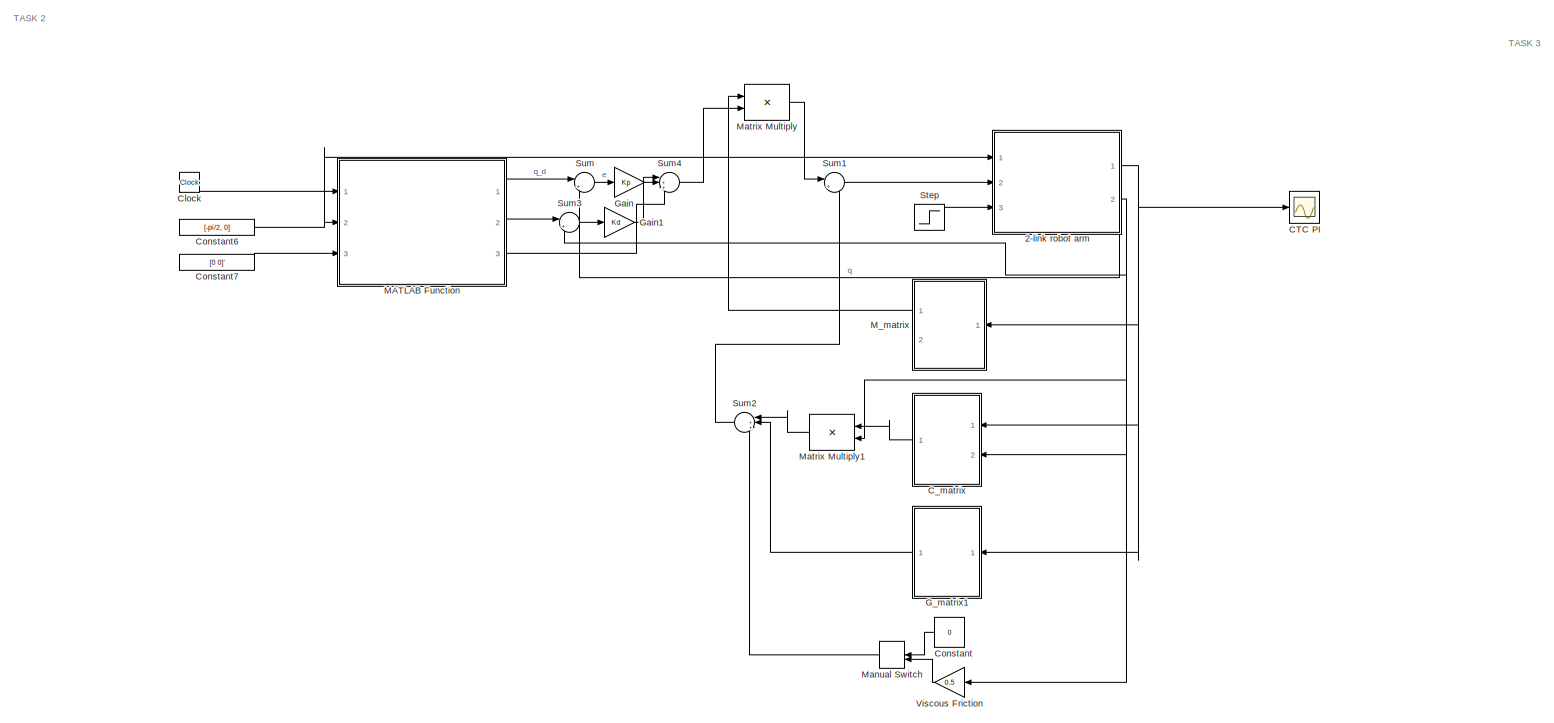
[diagram: root canvas - part 1/3, left side, full height]
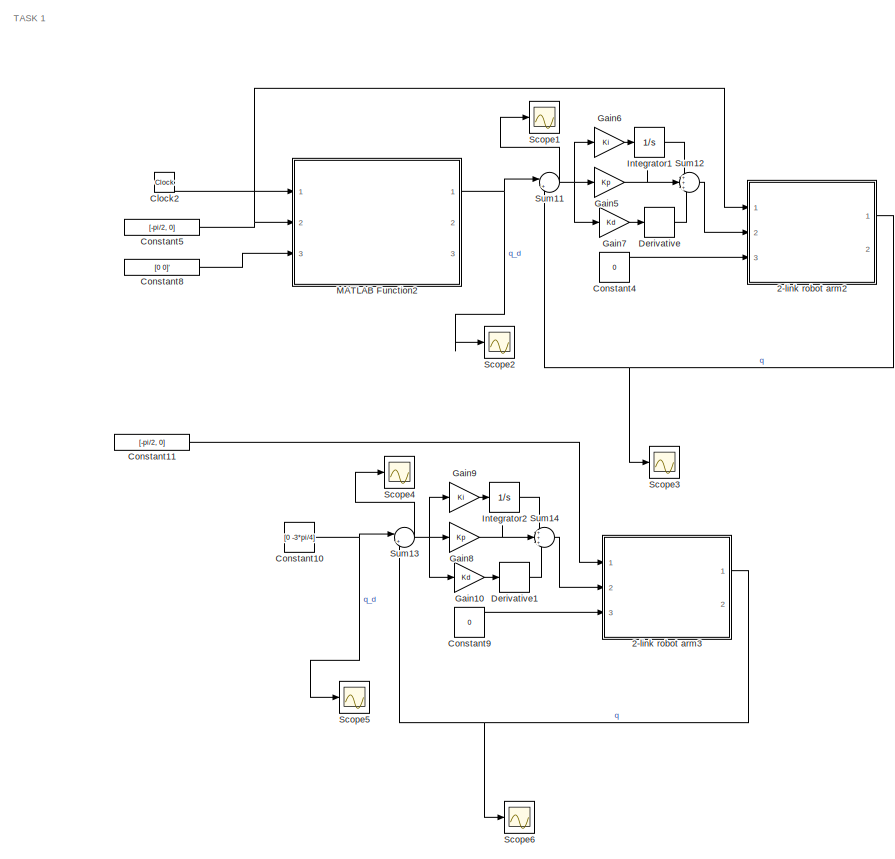
[diagram: root canvas - part 2/3, right side, full height]
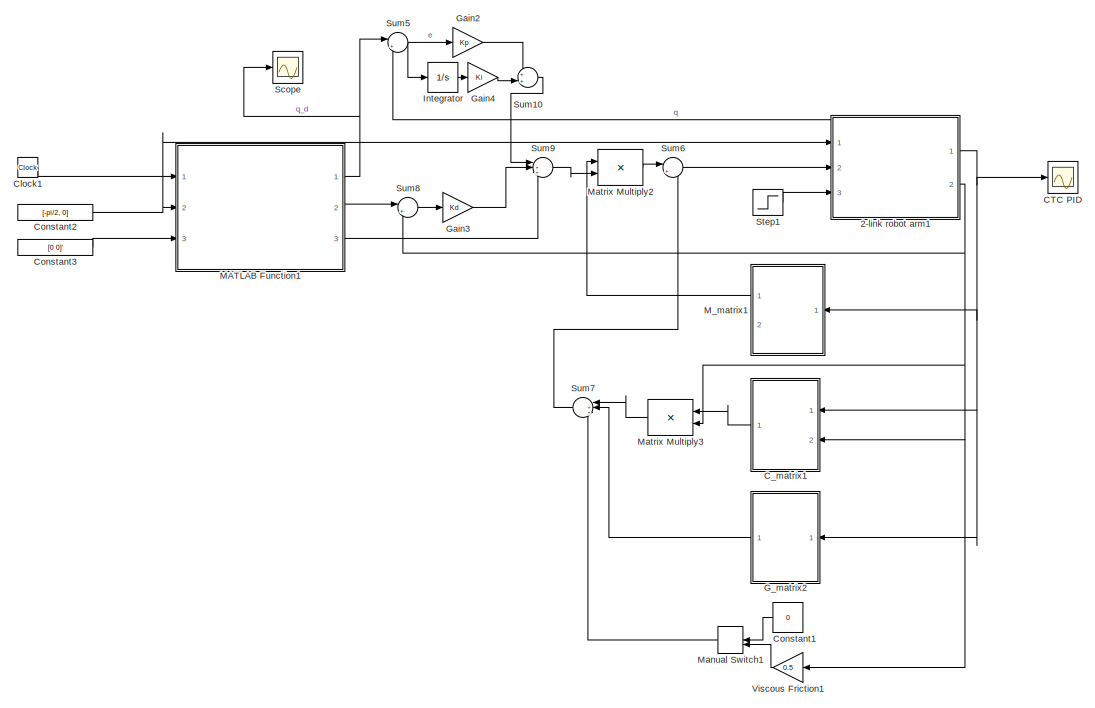
[diagram: root canvas - part 3/3, center side, full height]
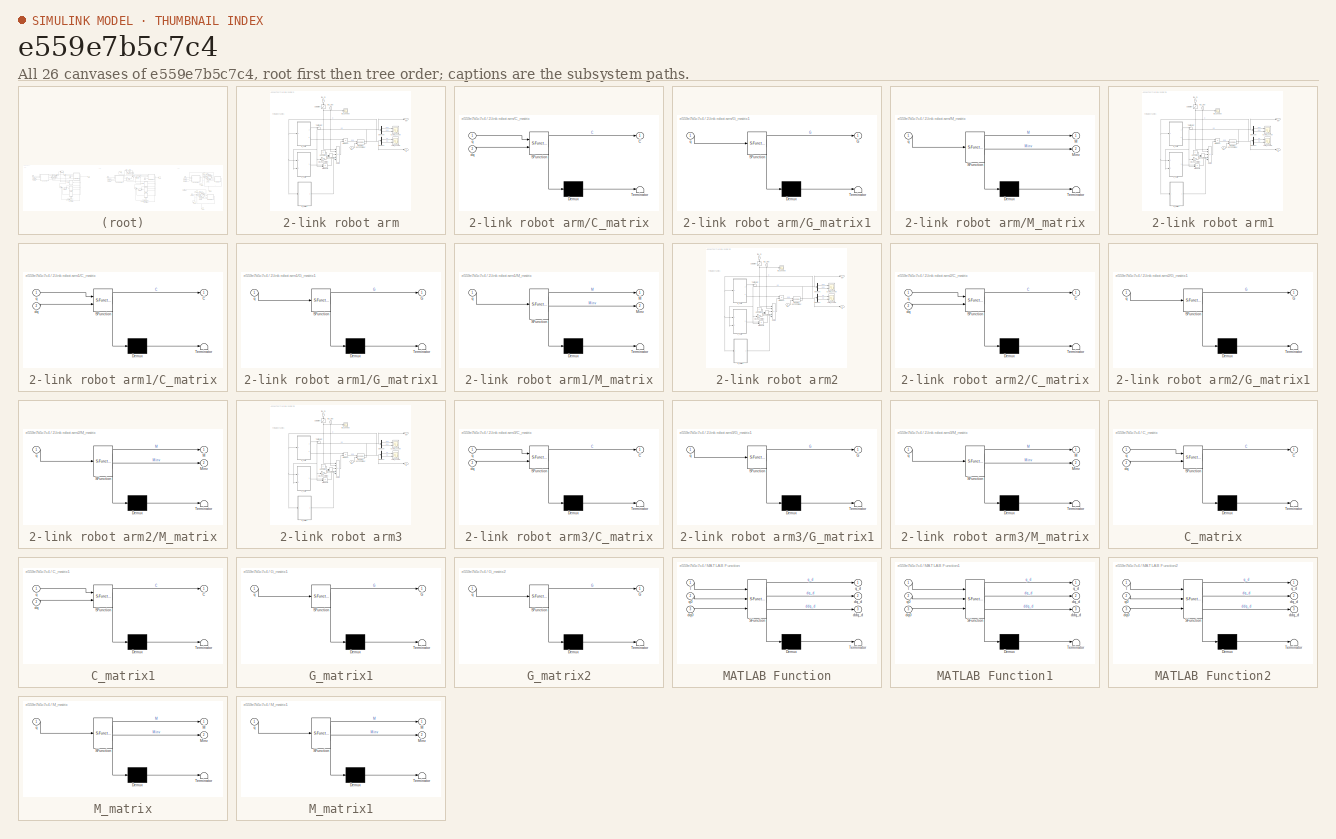
[diagram: thumbnail index - all 26 canvases of the model, root first then tree order]
MODEL slx_e559e7b5c7c4
KIND model
CONFIG AbsTol = auto
CONFIG EnableMultiTasking = off
CONFIG FixedStep = 1e-3
CONFIG MaxStep = auto
CONFIG MinStep = auto
CONFIG RelTol = 1e-3
CONFIG SampleTimeConstraint = Unconstrained
CONFIG Solver = ode4
CONFIG SolverName = ode4
CONFIG StartTime = 0.0
CONFIG StopTime = 100.0
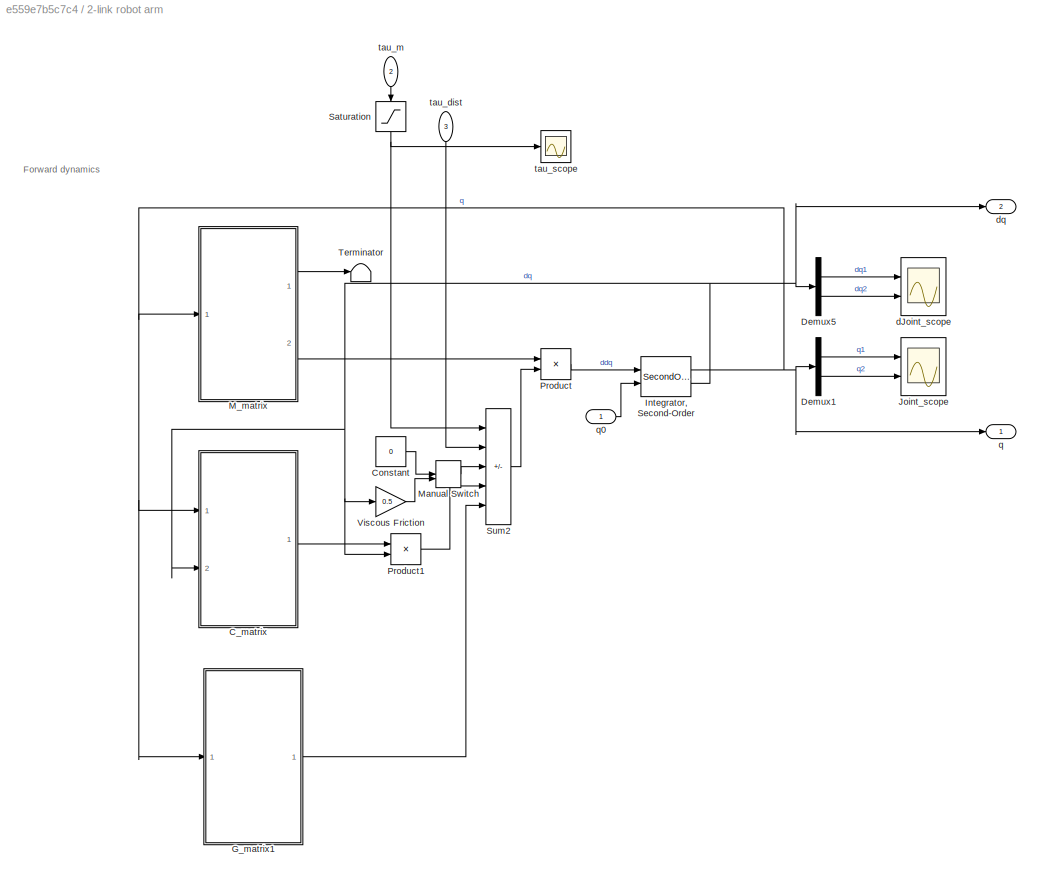
BLOCK [SubSystem] 2-link robot arm
  Ports = [3, 2]
  RequestExecContextInheritance = off
BLOCK [SubSystem] 2-link robot arm/C_matrix
  ErrorFcn = Stateflow.Translate.translate
  PermitHierarchicalResolution = ExplicitOnly
  Ports = [2, 1]
  RequestExecContextInheritance = off
  SFBlockType = MATLAB Function
  TreatAsAtomicUnit = on
BLOCK [Demux] 2-link robot arm/C_matrix/ Demux 
  Outputs = 1
  Ports = [1, 1]
BLOCK [S-Function] 2-link robot arm/C_matrix/ SFunction 
  EnableBusSupport = on
  FunctionName = sf_sfun
  Parameters = l1,lc2,m2
  PortCounts = [2 2]
  Ports = [2, 2]
  SFcnIsStateOwnerBlock = off
  SFunctionDeploymentMode = off
  Tag = Stateflow S-Function 23
BLOCK [Terminator] 2-link robot arm/C_matrix/ Terminator 
BLOCK [Outport] 2-link robot arm/C_matrix/C
  VectorParamsAs1DForOutWhenUnconnected = off
BLOCK [Inport] 2-link robot arm/C_matrix/dq
  Port = 2
BLOCK [Inport] 2-link robot arm/C_matrix/q
BLOCK [Constant] 2-link robot arm/Constant
  Value = 0
BLOCK [Demux] 2-link robot arm/Demux1
  Outputs = 2
  Ports = [1, 2]
BLOCK [Demux] 2-link robot arm/Demux5
  Outputs = 2
  Ports = [1, 2]
BLOCK [SubSystem] 2-link robot arm/G_matrix1
  ErrorFcn = Stateflow.Translate.translate
  PermitHierarchicalResolution = ExplicitOnly
  Ports = [1, 1]
  RequestExecContextInheritance = off
  SFBlockType = MATLAB Function
  TreatAsAtomicUnit = on
BLOCK [Demux] 2-link robot arm/G_matrix1/ Demux 
  Outputs = 1
  Ports = [1, 1]
BLOCK [S-Function] 2-link robot arm/G_matrix1/ SFunction 
  EnableBusSupport = on
  FunctionName = sf_sfun
  Parameters = g,l1,lc1,lc2,m1,m2
  PortCounts = [1 2]
  Ports = [1, 2]
  SFcnIsStateOwnerBlock = off
  SFunctionDeploymentMode = off
  Tag = Stateflow S-Function 24
BLOCK [Terminator] 2-link robot arm/G_matrix1/ Terminator 
BLOCK [Outport] 2-link robot arm/G_matrix1/G
  VectorParamsAs1DForOutWhenUnconnected = off
BLOCK [Inport] 2-link robot arm/G_matrix1/q
BLOCK [SecondOrderIntegrator] 2-link robot arm/Integrator, Second-Order
  ICSourceX = external
  Ports = [2, 2]
BLOCK [Scope] 2-link robot arm/Joint_scope
  Floating = off
  NumInputPorts = 2
  Ports = [2]
  ScopeSpecificationString = Simulink.scopes.TimeScopeBlockCfg('CurrentConfiguration', extmgr.ConfigurationSet(extmgr.Configuration('Core','General UI',true,'FigureColor',[0 0 0]),extmgr.Configuration('Core','Source UI',true),extmgr.Configuration('Sources','WiredSimulink',true),extmgr.Configuration('Visuals','Time Domain',true,'SerializedDisplays',{struct('MinYLimReal','-10.12473','MaxYLimReal','10.26063','YLabelReal','q_i(t)...<+1816ch>
BLOCK [SubSystem] 2-link robot arm/M_matrix
  ErrorFcn = Stateflow.Translate.translate
  PermitHierarchicalResolution = ExplicitOnly
  Ports = [1, 2]
  RequestExecContextInheritance = off
  SFBlockType = MATLAB Function
  TreatAsAtomicUnit = on
BLOCK [Demux] 2-link robot arm/M_matrix/ Demux 
  Outputs = 1
  Ports = [1, 1]
BLOCK [S-Function] 2-link robot arm/M_matrix/ SFunction 
  EnableBusSupport = on
  FunctionName = sf_sfun
  Parameters = I1zz,I2zz,l1,lc1,lc2,m1,m2
  PortCounts = [1 3]
  Ports = [1, 3]
  SFcnIsStateOwnerBlock = off
  SFunctionDeploymentMode = off
  Tag = Stateflow S-Function 25
BLOCK [Terminator] 2-link robot arm/M_matrix/ Terminator 
BLOCK [Outport] 2-link robot arm/M_matrix/M
  VectorParamsAs1DForOutWhenUnconnected = off
BLOCK [Outport] 2-link robot arm/M_matrix/Minv
  Port = 2
  VectorParamsAs1DForOutWhenUnconnected = off
BLOCK [Inport] 2-link robot arm/M_matrix/q
BLOCK [ManualSwitch] 2-link robot arm/Manual Switch
BLOCK [Product] 2-link robot arm/Product
  Multiplication = Matrix(*)
  Ports = [2, 1]
BLOCK [Product] 2-link robot arm/Product1
  Multiplication = Matrix(*)
  Ports = [2, 1]
BLOCK [Saturate] 2-link robot arm/Saturation
  LowerLimit = tau_down
  NameLocation = left
  UpperLimit = tau_up
BLOCK [Sum] 2-link robot arm/Sum2
  IconShape = rectangular
  Inputs = ++|---
  Ports = [5, 1]
BLOCK [Terminator] 2-link robot arm/Terminator
BLOCK [Gain] 2-link robot arm/Viscous Friction
  Gain = 0.5
BLOCK [Scope] 2-link robot arm/dJoint_scope
  Floating = off
  NumInputPorts = 2
  Ports = [2]
  ScopeSpecificationString = Simulink.scopes.TimeScopeBlockCfg('CurrentConfiguration', extmgr.ConfigurationSet(extmgr.Configuration('Core','General UI',true,'FigureColor',[0 0 0]),extmgr.Configuration('Core','Source UI',true),extmgr.Configuration('Sources','WiredSimulink',true,'DataLoggingVariableName','ScopeData1'),extmgr.Configuration('Visuals','Time Domain',true,'SerializedDisplays',{struct('MinYLimReal','-23.61564','MaxYL...<+1852ch>  <repeated x4 — deduplicated; at blocks: dJoint_scope>
BLOCK [Outport] 2-link robot arm/dq 
  Port = 2
BLOCK [Outport] 2-link robot arm/q 
BLOCK [Inport] 2-link robot arm/q0
BLOCK [Inport] 2-link robot arm/tau_dist
  NameLocation = left
  Port = 3
BLOCK [Inport] 2-link robot arm/tau_m
  NameLocation = left
  Port = 2
BLOCK [Scope] 2-link robot arm/tau_scope
  Floating = off
  NumInputPorts = 1
  Ports = [1]
  ScopeSpecificationString = Simulink.scopes.TimeScopeBlockCfg('CurrentConfiguration', extmgr.ConfigurationSet(extmgr.Configuration('Core','General UI',true),extmgr.Configuration('Core','Source UI',true),extmgr.Configuration('Sources','WiredSimulink',true,'DataLoggingVariableName','ScopeData3'),extmgr.Configuration('Visuals','Time Domain',true,'SerializedDisplays',{struct('MinYLimReal','-245.27394','MaxYLimReal','207.46548','...<+1463ch>
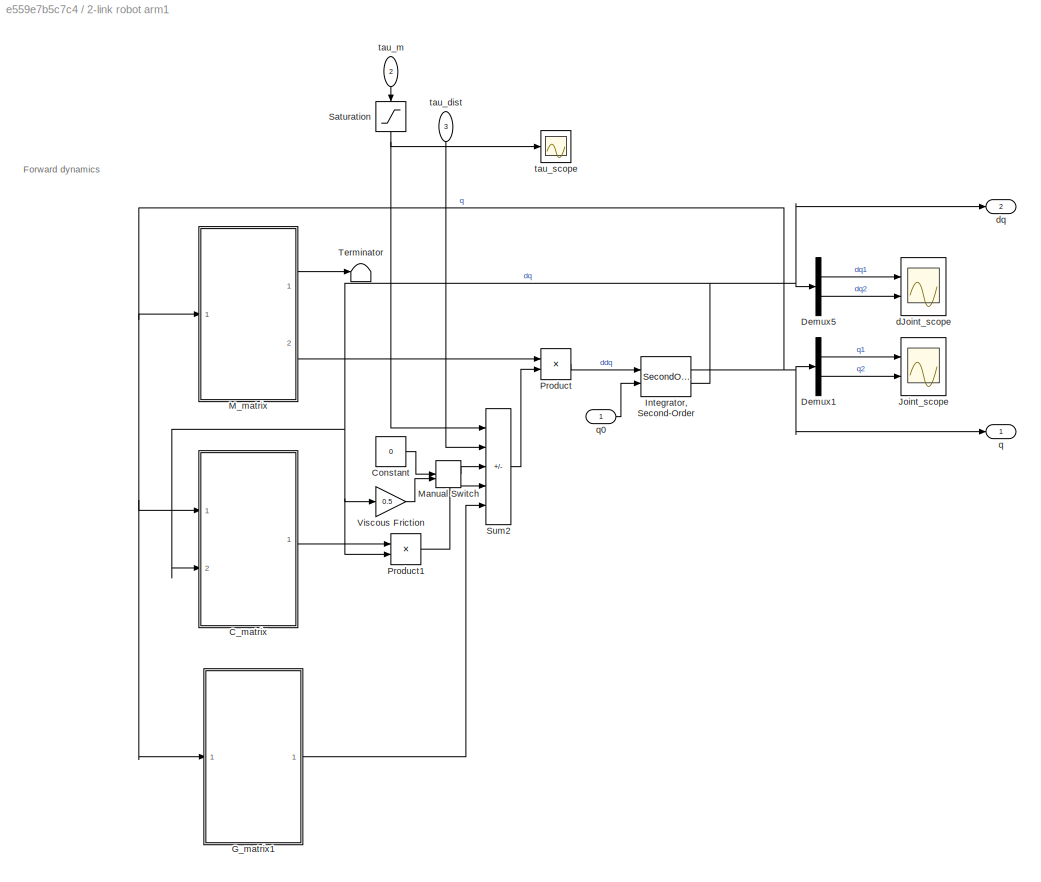
BLOCK [SubSystem] 2-link robot arm1
  Ports = [3, 2]
  RequestExecContextInheritance = off
BLOCK [SubSystem] 2-link robot arm1/C_matrix
  ErrorFcn = Stateflow.Translate.translate
  PermitHierarchicalResolution = ExplicitOnly
  Ports = [2, 1]
  RequestExecContextInheritance = off
  SFBlockType = MATLAB Function
  TreatAsAtomicUnit = on
BLOCK [Demux] 2-link robot arm1/C_matrix/ Demux 
  Outputs = 1
  Ports = [1, 1]
BLOCK [S-Function] 2-link robot arm1/C_matrix/ SFunction 
  EnableBusSupport = on
  FunctionName = sf_sfun
  Parameters = l1,lc2,m2
  PortCounts = [2 2]
  Ports = [2, 2]
  SFcnIsStateOwnerBlock = off
  SFunctionDeploymentMode = off
  Tag = Stateflow S-Function 4
BLOCK [Terminator] 2-link robot arm1/C_matrix/ Terminator 
BLOCK [Outport] 2-link robot arm1/C_matrix/C
  VectorParamsAs1DForOutWhenUnconnected = off
BLOCK [Inport] 2-link robot arm1/C_matrix/dq
  Port = 2
BLOCK [Inport] 2-link robot arm1/C_matrix/q
BLOCK [Constant] 2-link robot arm1/Constant
  Value = 0
BLOCK [Demux] 2-link robot arm1/Demux1
  Outputs = 2
  Ports = [1, 2]
BLOCK [Demux] 2-link robot arm1/Demux5
  Outputs = 2
  Ports = [1, 2]
BLOCK [SubSystem] 2-link robot arm1/G_matrix1
  ErrorFcn = Stateflow.Translate.translate
  PermitHierarchicalResolution = ExplicitOnly
  Ports = [1, 1]
  RequestExecContextInheritance = off
  SFBlockType = MATLAB Function
  TreatAsAtomicUnit = on
BLOCK [Demux] 2-link robot arm1/G_matrix1/ Demux 
  Outputs = 1
  Ports = [1, 1]
BLOCK [S-Function] 2-link robot arm1/G_matrix1/ SFunction 
  EnableBusSupport = on
  FunctionName = sf_sfun
  Parameters = g,l1,lc1,lc2,m1,m2
  PortCounts = [1 2]
  Ports = [1, 2]
  SFcnIsStateOwnerBlock = off
  SFunctionDeploymentMode = off
  Tag = Stateflow S-Function 5
BLOCK [Terminator] 2-link robot arm1/G_matrix1/ Terminator 
BLOCK [Outport] 2-link robot arm1/G_matrix1/G
  VectorParamsAs1DForOutWhenUnconnected = off
BLOCK [Inport] 2-link robot arm1/G_matrix1/q
BLOCK [SecondOrderIntegrator] 2-link robot arm1/Integrator, Second-Order
  ICSourceX = external
  Ports = [2, 2]
BLOCK [Scope] 2-link robot arm1/Joint_scope
  Floating = off
  NumInputPorts = 2
  Ports = [2]
  ScopeSpecificationString = Simulink.scopes.TimeScopeBlockCfg('CurrentConfiguration', extmgr.ConfigurationSet(extmgr.Configuration('Core','General UI',true,'FigureColor',[0 0 0]),extmgr.Configuration('Core','Source UI',true),extmgr.Configuration('Sources','WiredSimulink',true),extmgr.Configuration('Visuals','Time Domain',true,'SerializedDisplays',{struct('MinYLimReal','-5','MaxYLimReal','5','YLabelReal','q_i(t)','MinYLimMag'...<+1788ch>
BLOCK [SubSystem] 2-link robot arm1/M_matrix
  ErrorFcn = Stateflow.Translate.translate
  PermitHierarchicalResolution = ExplicitOnly
  Ports = [1, 2]
  RequestExecContextInheritance = off
  SFBlockType = MATLAB Function
  TreatAsAtomicUnit = on
BLOCK [Demux] 2-link robot arm1/M_matrix/ Demux 
  Outputs = 1
  Ports = [1, 1]
BLOCK [S-Function] 2-link robot arm1/M_matrix/ SFunction 
  EnableBusSupport = on
  FunctionName = sf_sfun
  Parameters = I1zz,I2zz,l1,lc1,lc2,m1,m2
  PortCounts = [1 3]
  Ports = [1, 3]
  SFcnIsStateOwnerBlock = off
  SFunctionDeploymentMode = off
  Tag = Stateflow S-Function 6
BLOCK [Terminator] 2-link robot arm1/M_matrix/ Terminator 
BLOCK [Outport] 2-link robot arm1/M_matrix/M
  VectorParamsAs1DForOutWhenUnconnected = off
BLOCK [Outport] 2-link robot arm1/M_matrix/Minv
  Port = 2
  VectorParamsAs1DForOutWhenUnconnected = off
BLOCK [Inport] 2-link robot arm1/M_matrix/q
BLOCK [ManualSwitch] 2-link robot arm1/Manual Switch
BLOCK [Product] 2-link robot arm1/Product
  Multiplication = Matrix(*)
  Ports = [2, 1]
BLOCK [Product] 2-link robot arm1/Product1
  Multiplication = Matrix(*)
  Ports = [2, 1]
BLOCK [Saturate] 2-link robot arm1/Saturation
  LowerLimit = tau_down
  NameLocation = left
  UpperLimit = tau_up
BLOCK [Sum] 2-link robot arm1/Sum2
  IconShape = rectangular
  Inputs = ++|---
  Ports = [5, 1]
BLOCK [Terminator] 2-link robot arm1/Terminator
BLOCK [Gain] 2-link robot arm1/Viscous Friction
  Gain = 0.5
BLOCK [Scope] 2-link robot arm1/dJoint_scope
  Floating = off
  NumInputPorts = 2
  Ports = [2]
BLOCK [Outport] 2-link robot arm1/dq 
  Port = 2
BLOCK [Outport] 2-link robot arm1/q 
BLOCK [Inport] 2-link robot arm1/q0
BLOCK [Inport] 2-link robot arm1/tau_dist
  NameLocation = left
  Port = 3
BLOCK [Inport] 2-link robot arm1/tau_m
  NameLocation = left
  Port = 2
BLOCK [Scope] 2-link robot arm1/tau_scope
  Floating = off
  NumInputPorts = 1
  Ports = [1]
  ScopeSpecificationString = Simulink.scopes.TimeScopeBlockCfg('CurrentConfiguration', extmgr.ConfigurationSet(extmgr.Configuration('Core','General UI',true),extmgr.Configuration('Core','Source UI',true),extmgr.Configuration('Sources','WiredSimulink',true,'DataLoggingVariableName','ScopeData3'),extmgr.Configuration('Visuals','Time Domain',true,'SerializedDisplays',{struct('MinYLimReal','-245.24901','MaxYLimReal','207.24109','...<+1462ch>
BLOCK [SubSystem] 2-link robot arm2
  Ports = [3, 2]
  RequestExecContextInheritance = off
BLOCK [SubSystem] 2-link robot arm2/C_matrix
  ErrorFcn = Stateflow.Translate.translate
  PermitHierarchicalResolution = ExplicitOnly
  Ports = [2, 1]
  RequestExecContextInheritance = off
  SFBlockType = MATLAB Function
  TreatAsAtomicUnit = on
BLOCK [Demux] 2-link robot arm2/C_matrix/ Demux 
  Outputs = 1
  Ports = [1, 1]
BLOCK [S-Function] 2-link robot arm2/C_matrix/ SFunction 
  EnableBusSupport = on
  FunctionName = sf_sfun
  Parameters = l1,lc2,m2
  PortCounts = [2 2]
  Ports = [2, 2]
  SFcnIsStateOwnerBlock = off
  SFunctionDeploymentMode = off
  Tag = Stateflow S-Function 12
BLOCK [Terminator] 2-link robot arm2/C_matrix/ Terminator 
BLOCK [Outport] 2-link robot arm2/C_matrix/C
  VectorParamsAs1DForOutWhenUnconnected = off
BLOCK [Inport] 2-link robot arm2/C_matrix/dq
  Port = 2
BLOCK [Inport] 2-link robot arm2/C_matrix/q
BLOCK [Constant] 2-link robot arm2/Constant
  Value = 0
BLOCK [Demux] 2-link robot arm2/Demux1
  Outputs = 2
  Ports = [1, 2]
BLOCK [Demux] 2-link robot arm2/Demux5
  Outputs = 2
  Ports = [1, 2]
BLOCK [SubSystem] 2-link robot arm2/G_matrix1
  ErrorFcn = Stateflow.Translate.translate
  PermitHierarchicalResolution = ExplicitOnly
  Ports = [1, 1]
  RequestExecContextInheritance = off
  SFBlockType = MATLAB Function
  TreatAsAtomicUnit = on
BLOCK [Demux] 2-link robot arm2/G_matrix1/ Demux 
  Outputs = 1
  Ports = [1, 1]
BLOCK [S-Function] 2-link robot arm2/G_matrix1/ SFunction 
  EnableBusSupport = on
  FunctionName = sf_sfun
  Parameters = g,l1,lc1,lc2,m1,m2
  PortCounts = [1 2]
  Ports = [1, 2]
  SFcnIsStateOwnerBlock = off
  SFunctionDeploymentMode = off
  Tag = Stateflow S-Function 13
BLOCK [Terminator] 2-link robot arm2/G_matrix1/ Terminator 
BLOCK [Outport] 2-link robot arm2/G_matrix1/G
  VectorParamsAs1DForOutWhenUnconnected = off
BLOCK [Inport] 2-link robot arm2/G_matrix1/q
BLOCK [SecondOrderIntegrator] 2-link robot arm2/Integrator, Second-Order
  ICSourceX = external
  Ports = [2, 2]
BLOCK [Scope] 2-link robot arm2/Joint_scope
  Floating = off
  NumInputPorts = 2
  Ports = [2]
  ScopeSpecificationString = Simulink.scopes.TimeScopeBlockCfg('CurrentConfiguration', extmgr.ConfigurationSet(extmgr.Configuration('Core','General UI',true,'FigureColor',[0 0 0]),extmgr.Configuration('Core','Source UI',true),extmgr.Configuration('Sources','WiredSimulink',true),extmgr.Configuration('Visuals','Time Domain',true,'SerializedDisplays',{struct('MinYLimReal','-5','MaxYLimReal','5','YLabelReal','q_i(t)','MinYLimMag'...<+1788ch>
BLOCK [SubSystem] 2-link robot arm2/M_matrix
  ErrorFcn = Stateflow.Translate.translate
  PermitHierarchicalResolution = ExplicitOnly
  Ports = [1, 2]
  RequestExecContextInheritance = off
  SFBlockType = MATLAB Function
  TreatAsAtomicUnit = on
BLOCK [Demux] 2-link robot arm2/M_matrix/ Demux 
  Outputs = 1
  Ports = [1, 1]
BLOCK [S-Function] 2-link robot arm2/M_matrix/ SFunction 
  EnableBusSupport = on
  FunctionName = sf_sfun
  Parameters = I1zz,I2zz,l1,lc1,lc2,m1,m2
  PortCounts = [1 3]
  Ports = [1, 3]
  SFcnIsStateOwnerBlock = off
  SFunctionDeploymentMode = off
  Tag = Stateflow S-Function 14
BLOCK [Terminator] 2-link robot arm2/M_matrix/ Terminator 
BLOCK [Outport] 2-link robot arm2/M_matrix/M
  VectorParamsAs1DForOutWhenUnconnected = off
BLOCK [Outport] 2-link robot arm2/M_matrix/Minv
  Port = 2
  VectorParamsAs1DForOutWhenUnconnected = off
BLOCK [Inport] 2-link robot arm2/M_matrix/q
BLOCK [ManualSwitch] 2-link robot arm2/Manual Switch
BLOCK [Product] 2-link robot arm2/Product
  Multiplication = Matrix(*)
  Ports = [2, 1]
BLOCK [Product] 2-link robot arm2/Product1
  Multiplication = Matrix(*)
  Ports = [2, 1]
BLOCK [Saturate] 2-link robot arm2/Saturation
  LowerLimit = tau_down
  NameLocation = left
  UpperLimit = tau_up
BLOCK [Sum] 2-link robot arm2/Sum2
  IconShape = rectangular
  Inputs = ++|---
  Ports = [5, 1]
BLOCK [Terminator] 2-link robot arm2/Terminator
BLOCK [Gain] 2-link robot arm2/Viscous Friction
  Gain = 0.5
BLOCK [Scope] 2-link robot arm2/dJoint_scope
  Floating = off
  NumInputPorts = 2
  Ports = [2]
BLOCK [Outport] 2-link robot arm2/dq 
  Port = 2
BLOCK [Outport] 2-link robot arm2/q 
BLOCK [Inport] 2-link robot arm2/q0
BLOCK [Inport] 2-link robot arm2/tau_dist
  NameLocation = left
  Port = 3
BLOCK [Inport] 2-link robot arm2/tau_m
  NameLocation = left
  Port = 2
BLOCK [Scope] 2-link robot arm2/tau_scope
  Floating = off
  NumInputPorts = 1
  Ports = [1]
  ScopeSpecificationString = Simulink.scopes.TimeScopeBlockCfg('CurrentConfiguration', extmgr.ConfigurationSet(extmgr.Configuration('Core','General UI',true),extmgr.Configuration('Core','Source UI',true),extmgr.Configuration('Sources','WiredSimulink',true,'DataLoggingVariableName','ScopeData3'),extmgr.Configuration('Visuals','Time Domain',true,'SerializedDisplays',{struct('MinYLimReal','-250.00000','MaxYLimReal','250.00000','...<+1461ch>
BLOCK [SubSystem] 2-link robot arm3
  Ports = [3, 2]
  RequestExecContextInheritance = off
BLOCK [SubSystem] 2-link robot arm3/C_matrix
  ErrorFcn = Stateflow.Translate.translate
  PermitHierarchicalResolution = ExplicitOnly
  Ports = [2, 1]
  RequestExecContextInheritance = off
  SFBlockType = MATLAB Function
  TreatAsAtomicUnit = on
BLOCK [Demux] 2-link robot arm3/C_matrix/ Demux 
  Outputs = 1
  Ports = [1, 1]
BLOCK [S-Function] 2-link robot arm3/C_matrix/ SFunction 
  EnableBusSupport = on
  FunctionName = sf_sfun
  Parameters = l1,lc2,m2
  PortCounts = [2 2]
  Ports = [2, 2]
  SFcnIsStateOwnerBlock = off
  SFunctionDeploymentMode = off
  Tag = Stateflow S-Function 15
BLOCK [Terminator] 2-link robot arm3/C_matrix/ Terminator 
BLOCK [Outport] 2-link robot arm3/C_matrix/C
  VectorParamsAs1DForOutWhenUnconnected = off
BLOCK [Inport] 2-link robot arm3/C_matrix/dq
  Port = 2
BLOCK [Inport] 2-link robot arm3/C_matrix/q
BLOCK [Constant] 2-link robot arm3/Constant
  Value = 0
BLOCK [Demux] 2-link robot arm3/Demux1
  Outputs = 2
  Ports = [1, 2]
BLOCK [Demux] 2-link robot arm3/Demux5
  Outputs = 2
  Ports = [1, 2]
BLOCK [SubSystem] 2-link robot arm3/G_matrix1
  ErrorFcn = Stateflow.Translate.translate
  PermitHierarchicalResolution = ExplicitOnly
  Ports = [1, 1]
  RequestExecContextInheritance = off
  SFBlockType = MATLAB Function
  TreatAsAtomicUnit = on
BLOCK [Demux] 2-link robot arm3/G_matrix1/ Demux 
  Outputs = 1
  Ports = [1, 1]
BLOCK [S-Function] 2-link robot arm3/G_matrix1/ SFunction 
  EnableBusSupport = on
  FunctionName = sf_sfun
  Parameters = g,l1,lc1,lc2,m1,m2
  PortCounts = [1 2]
  Ports = [1, 2]
  SFcnIsStateOwnerBlock = off
  SFunctionDeploymentMode = off
  Tag = Stateflow S-Function 16
BLOCK [Terminator] 2-link robot arm3/G_matrix1/ Terminator 
BLOCK [Outport] 2-link robot arm3/G_matrix1/G
  VectorParamsAs1DForOutWhenUnconnected = off
BLOCK [Inport] 2-link robot arm3/G_matrix1/q
BLOCK [SecondOrderIntegrator] 2-link robot arm3/Integrator, Second-Order
  ICSourceX = external
  Ports = [2, 2]
BLOCK [Scope] 2-link robot arm3/Joint_scope
  Floating = off
  NumInputPorts = 2
  Ports = [2]
  ScopeSpecificationString = Simulink.scopes.TimeScopeBlockCfg('CurrentConfiguration', extmgr.ConfigurationSet(extmgr.Configuration('Core','General UI',true,'FigureColor',[0 0 0]),extmgr.Configuration('Core','Source UI',true),extmgr.Configuration('Sources','WiredSimulink',true),extmgr.Configuration('Visuals','Time Domain',true,'SerializedDisplays',{struct('MinYLimReal','-3','MaxYLimReal','1','YLabelReal','q_i(t)','MinYLimMag'...<+1876ch>
BLOCK [SubSystem] 2-link robot arm3/M_matrix
  ErrorFcn = Stateflow.Translate.translate
  PermitHierarchicalResolution = ExplicitOnly
  Ports = [1, 2]
  RequestExecContextInheritance = off
  SFBlockType = MATLAB Function
  TreatAsAtomicUnit = on
BLOCK [Demux] 2-link robot arm3/M_matrix/ Demux 
  Outputs = 1
  Ports = [1, 1]
BLOCK [S-Function] 2-link robot arm3/M_matrix/ SFunction 
  EnableBusSupport = on
  FunctionName = sf_sfun
  Parameters = I1zz,I2zz,l1,lc1,lc2,m1,m2
  PortCounts = [1 3]
  Ports = [1, 3]
  SFcnIsStateOwnerBlock = off
  SFunctionDeploymentMode = off
  Tag = Stateflow S-Function 18
BLOCK [Terminator] 2-link robot arm3/M_matrix/ Terminator 
BLOCK [Outport] 2-link robot arm3/M_matrix/M
  VectorParamsAs1DForOutWhenUnconnected = off
BLOCK [Outport] 2-link robot arm3/M_matrix/Minv
  Port = 2
  VectorParamsAs1DForOutWhenUnconnected = off
BLOCK [Inport] 2-link robot arm3/M_matrix/q
BLOCK [ManualSwitch] 2-link robot arm3/Manual Switch
BLOCK [Product] 2-link robot arm3/Product
  Multiplication = Matrix(*)
  Ports = [2, 1]
BLOCK [Product] 2-link robot arm3/Product1
  Multiplication = Matrix(*)
  Ports = [2, 1]
BLOCK [Saturate] 2-link robot arm3/Saturation
  LowerLimit = tau_down
  NameLocation = left
  UpperLimit = tau_up
BLOCK [Sum] 2-link robot arm3/Sum2
  IconShape = rectangular
  Inputs = ++|---
  Ports = [5, 1]
BLOCK [Terminator] 2-link robot arm3/Terminator
BLOCK [Gain] 2-link robot arm3/Viscous Friction
  Gain = 0.5
BLOCK [Scope] 2-link robot arm3/dJoint_scope
  Floating = off
  NumInputPorts = 2
  Ports = [2]
BLOCK [Outport] 2-link robot arm3/dq 
  Port = 2
BLOCK [Outport] 2-link robot arm3/q 
BLOCK [Inport] 2-link robot arm3/q0
BLOCK [Inport] 2-link robot arm3/tau_dist
  NameLocation = left
  Port = 3
BLOCK [Inport] 2-link robot arm3/tau_m
  NameLocation = left
  Port = 2
BLOCK [Scope] 2-link robot arm3/tau_scope
  Floating = off
  NumInputPorts = 1
  Ports = [1]
  ScopeSpecificationString = Simulink.scopes.TimeScopeBlockCfg('CurrentConfiguration', extmgr.ConfigurationSet(extmgr.Configuration('Core','General UI',true),extmgr.Configuration('Core','Source UI',true),extmgr.Configuration('Sources','WiredSimulink',true,'DataLoggingVariableName','ScopeData3'),extmgr.Configuration('Visuals','Time Domain',true,'SerializedDisplays',{struct('MinYLimReal','-250.00000','MaxYLimReal','250.00000','...<+1461ch>
BLOCK [Scope] CTC PI
  Floating = off
  NumInputPorts = 1
  Ports = [1]
  ScopeSpecificationString = Simulink.scopes.TimeScopeBlockCfg('CurrentConfiguration', extmgr.ConfigurationSet(extmgr.Configuration('Core','General UI',true),extmgr.Configuration('Core','Source UI',true),extmgr.Configuration('Sources','WiredSimulink',true,'DataLoggingVariableName','ScopeData2'),extmgr.Configuration('Visuals','Time Domain',true,'SerializedDisplays',{struct('MinYLimReal','-1.97269','MaxYLimReal','0.6315','YLabe...<+1421ch>
BLOCK [Scope] CTC PID
  Floating = off
  NumInputPorts = 1
  Ports = [1]
  ScopeSpecificationString = Simulink.scopes.TimeScopeBlockCfg('CurrentConfiguration', extmgr.ConfigurationSet(extmgr.Configuration('Core','General UI',true),extmgr.Configuration('Core','Source UI',true),extmgr.Configuration('Sources','WiredSimulink',true,'DataLoggingVariableName','ScopeData1'),extmgr.Configuration('Visuals','Time Domain',true,'SerializedDisplays',{struct('MinYLimReal','-1.97437','MaxYLimReal','0.62938','YLab...<+1424ch>
BLOCK [SubSystem] C_matrix
  ErrorFcn = Stateflow.Translate.translate
  PermitHierarchicalResolution = ExplicitOnly
  Ports = [2, 1]
  RequestExecContextInheritance = off
  SFBlockType = MATLAB Function
  TreatAsAtomicUnit = on
BLOCK [Demux] C_matrix/ Demux 
  Outputs = 1
  Ports = [1, 1]
BLOCK [S-Function] C_matrix/ SFunction 
  EnableBusSupport = on
  FunctionName = sf_sfun
  Parameters = l1,lc2,m2
  PortCounts = [2 2]
  Ports = [2, 2]
  SFcnIsStateOwnerBlock = off
  SFunctionDeploymentMode = off
  Tag = Stateflow S-Function 2
BLOCK [Terminator] C_matrix/ Terminator 
BLOCK [Outport] C_matrix/C
  VectorParamsAs1DForOutWhenUnconnected = off
BLOCK [Inport] C_matrix/dq
  Port = 2
BLOCK [Inport] C_matrix/q
BLOCK [SubSystem] C_matrix1
  ErrorFcn = Stateflow.Translate.translate
  PermitHierarchicalResolution = ExplicitOnly
  Ports = [2, 1]
  RequestExecContextInheritance = off
  SFBlockType = MATLAB Function
  TreatAsAtomicUnit = on
BLOCK [Demux] C_matrix1/ Demux 
  Outputs = 1
  Ports = [1, 1]
BLOCK [S-Function] C_matrix1/ SFunction 
  EnableBusSupport = on
  FunctionName = sf_sfun
  Parameters = l1,lc2,m2
  PortCounts = [2 2]
  Ports = [2, 2]
  SFcnIsStateOwnerBlock = off
  SFunctionDeploymentMode = off
  Tag = Stateflow S-Function 7
BLOCK [Terminator] C_matrix1/ Terminator 
BLOCK [Outport] C_matrix1/C
  VectorParamsAs1DForOutWhenUnconnected = off
BLOCK [Inport] C_matrix1/dq
  Port = 2
BLOCK [Inport] C_matrix1/q
BLOCK [Clock] Clock
BLOCK [Clock] Clock1
BLOCK [Clock] Clock2
BLOCK [Constant] Constant
  Value = 0
BLOCK [Constant] Constant1
  Value = 0
BLOCK [Constant] Constant10
  Value = [0 -3*pi/4]
BLOCK [Constant] Constant11
  Value = [-pi/2, 0]
BLOCK [Constant] Constant2
  Value = [-pi/2, 0]
BLOCK [Constant] Constant3
  Value = [0 0]'
BLOCK [Constant] Constant4
  Value = 0
BLOCK [Constant] Constant5
  Value = [-pi/2, 0]
BLOCK [Constant] Constant6
  Value = [-pi/2, 0]
BLOCK [Constant] Constant7
  Value = [0 0]'
BLOCK [Constant] Constant8
  Value = [0 0]'
BLOCK [Constant] Constant9
  Value = 0
BLOCK [Derivative] Derivative
BLOCK [Derivative] Derivative1
BLOCK [SubSystem] G_matrix1
  ErrorFcn = Stateflow.Translate.translate
  PermitHierarchicalResolution = ExplicitOnly
  Ports = [1, 1]
  RequestExecContextInheritance = off
  SFBlockType = MATLAB Function
  TreatAsAtomicUnit = on
BLOCK [Demux] G_matrix1/ Demux 
  Outputs = 1
  Ports = [1, 1]
BLOCK [S-Function] G_matrix1/ SFunction 
  EnableBusSupport = on
  FunctionName = sf_sfun
  Parameters = g,l1,lc1,lc2,m1,m2
  PortCounts = [1 2]
  Ports = [1, 2]
  SFcnIsStateOwnerBlock = off
  SFunctionDeploymentMode = off
  Tag = Stateflow S-Function 3
BLOCK [Terminator] G_matrix1/ Terminator 
BLOCK [Outport] G_matrix1/G
  VectorParamsAs1DForOutWhenUnconnected = off
BLOCK [Inport] G_matrix1/q
BLOCK [SubSystem] G_matrix2
  ErrorFcn = Stateflow.Translate.translate
  PermitHierarchicalResolution = ExplicitOnly
  Ports = [1, 1]
  RequestExecContextInheritance = off
  SFBlockType = MATLAB Function
  TreatAsAtomicUnit = on
BLOCK [Demux] G_matrix2/ Demux 
  Outputs = 1
  Ports = [1, 1]
BLOCK [S-Function] G_matrix2/ SFunction 
  EnableBusSupport = on
  FunctionName = sf_sfun
  Parameters = g,l1,lc1,lc2,m1,m2
  PortCounts = [1 2]
  Ports = [1, 2]
  SFcnIsStateOwnerBlock = off
  SFunctionDeploymentMode = off
  Tag = Stateflow S-Function 8
BLOCK [Terminator] G_matrix2/ Terminator 
BLOCK [Outport] G_matrix2/G
  VectorParamsAs1DForOutWhenUnconnected = off
BLOCK [Inport] G_matrix2/q
BLOCK [Gain] Gain
  Gain = Kp
BLOCK [Gain] Gain1
  Gain = Kd
BLOCK [Gain] Gain10
  Gain = Kd
BLOCK [Gain] Gain2
  Gain = Kp
BLOCK [Gain] Gain3
  Gain = Kd
BLOCK [Gain] Gain4
  Gain = Ki
BLOCK [Gain] Gain5
  Gain = Kp
BLOCK [Gain] Gain6
  Gain = Ki
BLOCK [Gain] Gain7
  Gain = Kd
BLOCK [Gain] Gain8
  Gain = Kp
BLOCK [Gain] Gain9
  Gain = Ki
BLOCK [Integrator] Integrator
  Ports = [1, 1]
BLOCK [Integrator] Integrator1
  Ports = [1, 1]
BLOCK [Integrator] Integrator2
  Ports = [1, 1]
BLOCK [SubSystem] MATLAB Function
  ErrorFcn = Stateflow.Translate.translate
  PermitHierarchicalResolution = ExplicitOnly
  Ports = [3, 3]
  RequestExecContextInheritance = off
  SFBlockType = MATLAB Function
  TreatAsAtomicUnit = on
BLOCK [Demux] MATLAB Function/ Demux 
  Outputs = 1
  Ports = [1, 1]
BLOCK [S-Function] MATLAB Function/ SFunction 
  EnableBusSupport = on
  FunctionName = sf_sfun
  PortCounts = [3 4]
  Ports = [3, 4]
  SFcnIsStateOwnerBlock = off
  SFunctionDeploymentMode = off
  Tag = Stateflow S-Function 10
BLOCK [Terminator] MATLAB Function/ Terminator 
BLOCK [Outport] MATLAB Function/ddq_d
  Port = 3
  VectorParamsAs1DForOutWhenUnconnected = off
BLOCK [Inport] MATLAB Function/dq0
  Port = 3
BLOCK [Outport] MATLAB Function/dq_d
  Port = 2
  VectorParamsAs1DForOutWhenUnconnected = off
BLOCK [Inport] MATLAB Function/q0
  Port = 2
BLOCK [Outport] MATLAB Function/q_d
  VectorParamsAs1DForOutWhenUnconnected = off
BLOCK [Inport] MATLAB Function/t
BLOCK [SubSystem] MATLAB Function1
  ErrorFcn = Stateflow.Translate.translate
  PermitHierarchicalResolution = ExplicitOnly
  Ports = [3, 3]
  RequestExecContextInheritance = off
  SFBlockType = MATLAB Function
  TreatAsAtomicUnit = on
BLOCK [Demux] MATLAB Function1/ Demux 
  Outputs = 1
  Ports = [1, 1]
BLOCK [S-Function] MATLAB Function1/ SFunction 
  EnableBusSupport = on
  FunctionName = sf_sfun
  PortCounts = [3 4]
  Ports = [3, 4]
  SFcnIsStateOwnerBlock = off
  SFunctionDeploymentMode = off
  Tag = Stateflow S-Function 9
BLOCK [Terminator] MATLAB Function1/ Terminator 
BLOCK [Outport] MATLAB Function1/ddq_d
  Port = 3
  VectorParamsAs1DForOutWhenUnconnected = off
BLOCK [Inport] MATLAB Function1/dq0
  Port = 3
BLOCK [Outport] MATLAB Function1/dq_d
  Port = 2
  VectorParamsAs1DForOutWhenUnconnected = off
BLOCK [Inport] MATLAB Function1/q0
  Port = 2
BLOCK [Outport] MATLAB Function1/q_d
  VectorParamsAs1DForOutWhenUnconnected = off
BLOCK [Inport] MATLAB Function1/t
BLOCK [SubSystem] MATLAB Function2
  ErrorFcn = Stateflow.Translate.translate
  PermitHierarchicalResolution = ExplicitOnly
  Ports = [3, 3]
  RequestExecContextInheritance = off
  SFBlockType = MATLAB Function
  TreatAsAtomicUnit = on
BLOCK [Demux] MATLAB Function2/ Demux 
  Outputs = 1
  Ports = [1, 1]
BLOCK [S-Function] MATLAB Function2/ SFunction 
  EnableBusSupport = on
  FunctionName = sf_sfun
  PortCounts = [3 4]
  Ports = [3, 4]
  SFcnIsStateOwnerBlock = off
  SFunctionDeploymentMode = off
  Tag = Stateflow S-Function 17
BLOCK [Terminator] MATLAB Function2/ Terminator 
BLOCK [Outport] MATLAB Function2/ddq_d
  Port = 3
  VectorParamsAs1DForOutWhenUnconnected = off
BLOCK [Inport] MATLAB Function2/dq0
  Port = 3
BLOCK [Outport] MATLAB Function2/dq_d
  Port = 2
  VectorParamsAs1DForOutWhenUnconnected = off
BLOCK [Inport] MATLAB Function2/q0
  Port = 2
BLOCK [Outport] MATLAB Function2/q_d
  VectorParamsAs1DForOutWhenUnconnected = off
BLOCK [Inport] MATLAB Function2/t
BLOCK [SubSystem] M_matrix
  ErrorFcn = Stateflow.Translate.translate
  PermitHierarchicalResolution = ExplicitOnly
  Ports = [1, 2]
  RequestExecContextInheritance = off
  SFBlockType = MATLAB Function
  TreatAsAtomicUnit = on
BLOCK [Demux] M_matrix/ Demux 
  Outputs = 1
  Ports = [1, 1]
BLOCK [S-Function] M_matrix/ SFunction 
  EnableBusSupport = on
  FunctionName = sf_sfun
  Parameters = I1zz,I2zz,l1,lc1,lc2,m1,m2
  PortCounts = [1 3]
  Ports = [1, 3]
  SFcnIsStateOwnerBlock = off
  SFunctionDeploymentMode = off
  Tag = Stateflow S-Function 1
BLOCK [Terminator] M_matrix/ Terminator 
BLOCK [Outport] M_matrix/M
  VectorParamsAs1DForOutWhenUnconnected = off
BLOCK [Outport] M_matrix/Minv
  Port = 2
  VectorParamsAs1DForOutWhenUnconnected = off
BLOCK [Inport] M_matrix/q
BLOCK [SubSystem] M_matrix1
  ErrorFcn = Stateflow.Translate.translate
  PermitHierarchicalResolution = ExplicitOnly
  Ports = [1, 2]
  RequestExecContextInheritance = off
  SFBlockType = MATLAB Function
  TreatAsAtomicUnit = on
BLOCK [Demux] M_matrix1/ Demux 
  Outputs = 1
  Ports = [1, 1]
BLOCK [S-Function] M_matrix1/ SFunction 
  EnableBusSupport = on
  FunctionName = sf_sfun
  Parameters = I1zz,I2zz,l1,lc1,lc2,m1,m2
  PortCounts = [1 3]
  Ports = [1, 3]
  SFcnIsStateOwnerBlock = off
  SFunctionDeploymentMode = off
  Tag = Stateflow S-Function 11
BLOCK [Terminator] M_matrix1/ Terminator 
BLOCK [Outport] M_matrix1/M
  VectorParamsAs1DForOutWhenUnconnected = off
BLOCK [Outport] M_matrix1/Minv
  Port = 2
  VectorParamsAs1DForOutWhenUnconnected = off
BLOCK [Inport] M_matrix1/q
BLOCK [ManualSwitch] Manual Switch
BLOCK [ManualSwitch] Manual Switch1
BLOCK [Product] Matrix Multiply
  Multiplication = Matrix(*)
  Ports = [2, 1]
BLOCK [Product] Matrix Multiply1
  Multiplication = Matrix(*)
  Ports = [2, 1]
BLOCK [Product] Matrix Multiply2
  Multiplication = Matrix(*)
  Ports = [2, 1]
BLOCK [Product] Matrix Multiply3
  Multiplication = Matrix(*)
  Ports = [2, 1]
BLOCK [Scope] Scope
  Floating = off
  NumInputPorts = 1
  Ports = [1]
  ScopeSpecificationString = Simulink.scopes.TimeScopeBlockCfg('CurrentConfiguration', extmgr.ConfigurationSet(extmgr.Configuration('Core','General UI',true),extmgr.Configuration('Core','Source UI',true),extmgr.Configuration('Sources','WiredSimulink',true,'DataLoggingVariableName','ScopeData1'),extmgr.Configuration('Visuals','Time Domain',true,'SerializedDisplays',{struct('MinYLimReal','-1.8938','MaxYLimReal','0.38633','YLabe...<+1368ch>
BLOCK [Scope] Scope1
  Floating = off
  NumInputPorts = 1
  Ports = [1]
  ScopeSpecificationString = Simulink.scopes.TimeScopeBlockCfg('CurrentConfiguration', extmgr.ConfigurationSet(extmgr.Configuration('Core','General UI',true),extmgr.Configuration('Core','Source UI',true),extmgr.Configuration('Sources','WiredSimulink',true,'DataLoggingVariableName','ScopeData2'),extmgr.Configuration('Visuals','Time Domain',true,'SerializedDisplays',{struct('MinYLimReal','-0.18257','MaxYLimReal','0.24702','YLab...<+1376ch>
BLOCK [Scope] Scope2
  Floating = off
  NumInputPorts = 1
  Ports = [1]
  ScopeSpecificationString = Simulink.scopes.TimeScopeBlockCfg('CurrentConfiguration', extmgr.ConfigurationSet(extmgr.Configuration('Core','General UI',true),extmgr.Configuration('Core','Source UI',true),extmgr.Configuration('Sources','WiredSimulink',true,'DataLoggingVariableName','ScopeData3'),extmgr.Configuration('Visuals','Time Domain',true,'SerializedDisplays',{struct('MinYLimReal','-1.8938','MaxYLimReal','0.38633','YLabe...<+1397ch>
BLOCK [Scope] Scope3
  Floating = off
  NumInputPorts = 1
  Ports = [1]
  ScopeSpecificationString = Simulink.scopes.TimeScopeBlockCfg('CurrentConfiguration', extmgr.ConfigurationSet(extmgr.Configuration('Core','General UI',true),extmgr.Configuration('Core','Source UI',true),extmgr.Configuration('Sources','WiredSimulink',true,'DataLoggingVariableName','ScopeData4'),extmgr.Configuration('Visuals','Time Domain',true,'SerializedDisplays',{struct('MinYLimReal','-1.83209','MaxYLimReal','0.31181','YLab...<+1398ch>
BLOCK [Scope] Scope4
  Floating = off
  NumInputPorts = 1
  Ports = [1]
  ScopeSpecificationString = Simulink.scopes.TimeScopeBlockCfg('CurrentConfiguration', extmgr.ConfigurationSet(extmgr.Configuration('Core','General UI',true),extmgr.Configuration('Core','Source UI',true),extmgr.Configuration('Sources','WiredSimulink',true,'DataLoggingVariableName','ScopeData5'),extmgr.Configuration('Visuals','Time Domain',true,'SerializedDisplays',{struct('MinYLimReal','-0.19066','MaxYLimReal','0.2527','YLabe...<+1372ch>
BLOCK [Scope] Scope5
  Floating = off
  NumInputPorts = 1
  Ports = [1]
  ScopeSpecificationString = Simulink.scopes.TimeScopeBlockCfg('CurrentConfiguration', extmgr.ConfigurationSet(extmgr.Configuration('Core','General UI',true),extmgr.Configuration('Core','Source UI',true),extmgr.Configuration('Sources','WiredSimulink',true,'DataLoggingVariableName','ScopeData6'),extmgr.Configuration('Visuals','Time Domain',true,'SerializedDisplays',{struct('MinYLimReal','-1.8938','MaxYLimReal','0.38633','YLabe...<+1397ch>
BLOCK [Scope] Scope6
  Floating = off
  NumInputPorts = 1
  Ports = [1]
  ScopeSpecificationString = Simulink.scopes.TimeScopeBlockCfg('CurrentConfiguration', extmgr.ConfigurationSet(extmgr.Configuration('Core','General UI',true),extmgr.Configuration('Core','Source UI',true),extmgr.Configuration('Sources','WiredSimulink',true,'DataLoggingVariableName','ScopeData7'),extmgr.Configuration('Visuals','Time Domain',true,'SerializedDisplays',{struct('MinYLimReal','-2.67613','MaxYLimReal','0.29735','YLab...<+1423ch>
BLOCK [Step] Step
  After = 10
  SampleTime = 0
  Time = 5
BLOCK [Step] Step1
  After = 10
  SampleTime = 0
  Time = 5
BLOCK [Sum] Sum
  Inputs = |+-
  Ports = [2, 1]
BLOCK [Sum] Sum1
  Inputs = |++
  Ports = [2, 1]
BLOCK [Sum] Sum10
  Inputs = ++|
  Ports = [2, 1]
BLOCK [Sum] Sum11
  Inputs = |+-
  Ports = [2, 1]
BLOCK [Sum] Sum12
  Inputs = +++|
  Ports = [3, 1]
BLOCK [Sum] Sum13
  Inputs = |+-
  Ports = [2, 1]
BLOCK [Sum] Sum14
  Inputs = +++|
  Ports = [3, 1]
BLOCK [Sum] Sum2
  Inputs = |+++
  Ports = [3, 1]
BLOCK [Sum] Sum3
  Inputs = |+-
  Ports = [2, 1]
BLOCK [Sum] Sum4
  Inputs = |+++
  Ports = [3, 1]
BLOCK [Sum] Sum5
  Inputs = |+-
  Ports = [2, 1]
BLOCK [Sum] Sum6
  Inputs = |++
  Ports = [2, 1]
BLOCK [Sum] Sum7
  Inputs = |+++
  Ports = [3, 1]
BLOCK [Sum] Sum8
  Inputs = |+-
  Ports = [2, 1]
BLOCK [Sum] Sum9
  Inputs = |+++
  Ports = [3, 1]
BLOCK [Gain] Viscous Friction
  Gain = 0.5
BLOCK [Gain] Viscous Friction1
  Gain = 0.5
ANNOTATION (root): TASK 1
ANNOTATION (root): TASK 2
ANNOTATION (root): TASK 3
ANNOTATION 2-link robot arm: Forward dynamics
ANNOTATION 2-link robot arm1: Forward dynamics
ANNOTATION 2-link robot arm2: Forward dynamics
ANNOTATION 2-link robot arm3: Forward dynamics
LINE 2-link robot arm/C_matrix:1 -> 2-link robot arm/Product1:1
LINE 2-link robot arm/Constant:1 -> 2-link robot arm/Manual Switch:1
LINE 2-link robot arm/Demux1:1 -> 2-link robot arm/Joint_scope:1
LINE 2-link robot arm/Demux1:2 -> 2-link robot arm/Joint_scope:2
LINE 2-link robot arm/Demux5:1 -> 2-link robot arm/dJoint_scope:1
LINE 2-link robot arm/Demux5:2 -> 2-link robot arm/dJoint_scope:2
LINE 2-link robot arm/G_matrix1:1 -> 2-link robot arm/Sum2:5
NET 2-link robot arm/Integrator, Second-Order:1 -> 2-link robot arm/C_matrix:1, 2-link robot arm/Demux1:1, 2-link robot arm/G_matrix1:1, 2-link robot arm/M_matrix:1, 2-link robot arm/q :1
NET 2-link robot arm/Integrator, Second-Order:2 -> 2-link robot arm/C_matrix:2, 2-link robot arm/Demux5:1, 2-link robot arm/Product1:2, 2-link robot arm/Viscous Friction:1, 2-link robot arm/dq :1
LINE 2-link robot arm/M_matrix:1 -> 2-link robot arm/Terminator:1
LINE 2-link robot arm/M_matrix:2 -> 2-link robot arm/Product:1
LINE 2-link robot arm/Manual Switch:1 -> 2-link robot arm/Sum2:3
LINE 2-link robot arm/Product1:1 -> 2-link robot arm/Sum2:4
LINE 2-link robot arm/Product:1 -> 2-link robot arm/Integrator, Second-Order:1
NET 2-link robot arm/Saturation:1 -> 2-link robot arm/Sum2:1, 2-link robot arm/tau_scope:1
LINE 2-link robot arm/Sum2:1 -> 2-link robot arm/Product:2
LINE 2-link robot arm/Viscous Friction:1 -> 2-link robot arm/Manual Switch:2
LINE 2-link robot arm/q0:1 -> 2-link robot arm/Integrator, Second-Order:2
LINE 2-link robot arm/tau_dist:1 -> 2-link robot arm/Sum2:2
LINE 2-link robot arm/tau_m:1 -> 2-link robot arm/Saturation:1
LINE 2-link robot arm1/C_matrix:1 -> 2-link robot arm1/Product1:1
LINE 2-link robot arm1/Constant:1 -> 2-link robot arm1/Manual Switch:1
LINE 2-link robot arm1/Demux1:1 -> 2-link robot arm1/Joint_scope:1
LINE 2-link robot arm1/Demux1:2 -> 2-link robot arm1/Joint_scope:2
LINE 2-link robot arm1/Demux5:1 -> 2-link robot arm1/dJoint_scope:1
LINE 2-link robot arm1/Demux5:2 -> 2-link robot arm1/dJoint_scope:2
LINE 2-link robot arm1/G_matrix1:1 -> 2-link robot arm1/Sum2:5
NET 2-link robot arm1/Integrator, Second-Order:1 -> 2-link robot arm1/C_matrix:1, 2-link robot arm1/Demux1:1, 2-link robot arm1/G_matrix1:1, 2-link robot arm1/M_matrix:1, 2-link robot arm1/q :1
NET 2-link robot arm1/Integrator, Second-Order:2 -> 2-link robot arm1/C_matrix:2, 2-link robot arm1/Demux5:1, 2-link robot arm1/Product1:2, 2-link robot arm1/Viscous Friction:1, 2-link robot arm1/dq :1
LINE 2-link robot arm1/M_matrix:1 -> 2-link robot arm1/Terminator:1
LINE 2-link robot arm1/M_matrix:2 -> 2-link robot arm1/Product:1
LINE 2-link robot arm1/Manual Switch:1 -> 2-link robot arm1/Sum2:3
LINE 2-link robot arm1/Product1:1 -> 2-link robot arm1/Sum2:4
LINE 2-link robot arm1/Product:1 -> 2-link robot arm1/Integrator, Second-Order:1
NET 2-link robot arm1/Saturation:1 -> 2-link robot arm1/Sum2:1, 2-link robot arm1/tau_scope:1
LINE 2-link robot arm1/Sum2:1 -> 2-link robot arm1/Product:2
LINE 2-link robot arm1/Viscous Friction:1 -> 2-link robot arm1/Manual Switch:2
LINE 2-link robot arm1/q0:1 -> 2-link robot arm1/Integrator, Second-Order:2
LINE 2-link robot arm1/tau_dist:1 -> 2-link robot arm1/Sum2:2
LINE 2-link robot arm1/tau_m:1 -> 2-link robot arm1/Saturation:1
NET 2-link robot arm1:1 -> CTC PID:1, C_matrix1:1, G_matrix2:1, M_matrix1:1, Sum5:2
NET 2-link robot arm1:2 -> C_matrix1:2, Matrix Multiply3:2, Sum8:2, Viscous Friction1:1
LINE 2-link robot arm2/C_matrix:1 -> 2-link robot arm2/Product1:1
LINE 2-link robot arm2/Constant:1 -> 2-link robot arm2/Manual Switch:1
LINE 2-link robot arm2/Demux1:1 -> 2-link robot arm2/Joint_scope:1
LINE 2-link robot arm2/Demux1:2 -> 2-link robot arm2/Joint_scope:2
LINE 2-link robot arm2/Demux5:1 -> 2-link robot arm2/dJoint_scope:1
LINE 2-link robot arm2/Demux5:2 -> 2-link robot arm2/dJoint_scope:2
LINE 2-link robot arm2/G_matrix1:1 -> 2-link robot arm2/Sum2:5
NET 2-link robot arm2/Integrator, Second-Order:1 -> 2-link robot arm2/C_matrix:1, 2-link robot arm2/Demux1:1, 2-link robot arm2/G_matrix1:1, 2-link robot arm2/M_matrix:1, 2-link robot arm2/q :1
NET 2-link robot arm2/Integrator, Second-Order:2 -> 2-link robot arm2/C_matrix:2, 2-link robot arm2/Demux5:1, 2-link robot arm2/Product1:2, 2-link robot arm2/Viscous Friction:1, 2-link robot arm2/dq :1
LINE 2-link robot arm2/M_matrix:1 -> 2-link robot arm2/Terminator:1
LINE 2-link robot arm2/M_matrix:2 -> 2-link robot arm2/Product:1
LINE 2-link robot arm2/Manual Switch:1 -> 2-link robot arm2/Sum2:3
LINE 2-link robot arm2/Product1:1 -> 2-link robot arm2/Sum2:4
LINE 2-link robot arm2/Product:1 -> 2-link robot arm2/Integrator, Second-Order:1
NET 2-link robot arm2/Saturation:1 -> 2-link robot arm2/Sum2:1, 2-link robot arm2/tau_scope:1
LINE 2-link robot arm2/Sum2:1 -> 2-link robot arm2/Product:2
LINE 2-link robot arm2/Viscous Friction:1 -> 2-link robot arm2/Manual Switch:2
LINE 2-link robot arm2/q0:1 -> 2-link robot arm2/Integrator, Second-Order:2
LINE 2-link robot arm2/tau_dist:1 -> 2-link robot arm2/Sum2:2
LINE 2-link robot arm2/tau_m:1 -> 2-link robot arm2/Saturation:1
NET 2-link robot arm2:1 -> Scope3:1, Sum11:2
LINE 2-link robot arm3/C_matrix:1 -> 2-link robot arm3/Product1:1
LINE 2-link robot arm3/Constant:1 -> 2-link robot arm3/Manual Switch:1
LINE 2-link robot arm3/Demux1:1 -> 2-link robot arm3/Joint_scope:1
LINE 2-link robot arm3/Demux1:2 -> 2-link robot arm3/Joint_scope:2
LINE 2-link robot arm3/Demux5:1 -> 2-link robot arm3/dJoint_scope:1
LINE 2-link robot arm3/Demux5:2 -> 2-link robot arm3/dJoint_scope:2
LINE 2-link robot arm3/G_matrix1:1 -> 2-link robot arm3/Sum2:5
NET 2-link robot arm3/Integrator, Second-Order:1 -> 2-link robot arm3/C_matrix:1, 2-link robot arm3/Demux1:1, 2-link robot arm3/G_matrix1:1, 2-link robot arm3/M_matrix:1, 2-link robot arm3/q :1
NET 2-link robot arm3/Integrator, Second-Order:2 -> 2-link robot arm3/C_matrix:2, 2-link robot arm3/Demux5:1, 2-link robot arm3/Product1:2, 2-link robot arm3/Viscous Friction:1, 2-link robot arm3/dq :1
LINE 2-link robot arm3/M_matrix:1 -> 2-link robot arm3/Terminator:1
LINE 2-link robot arm3/M_matrix:2 -> 2-link robot arm3/Product:1
LINE 2-link robot arm3/Manual Switch:1 -> 2-link robot arm3/Sum2:3
LINE 2-link robot arm3/Product1:1 -> 2-link robot arm3/Sum2:4
LINE 2-link robot arm3/Product:1 -> 2-link robot arm3/Integrator, Second-Order:1
NET 2-link robot arm3/Saturation:1 -> 2-link robot arm3/Sum2:1, 2-link robot arm3/tau_scope:1
LINE 2-link robot arm3/Sum2:1 -> 2-link robot arm3/Product:2
LINE 2-link robot arm3/Viscous Friction:1 -> 2-link robot arm3/Manual Switch:2
LINE 2-link robot arm3/q0:1 -> 2-link robot arm3/Integrator, Second-Order:2
LINE 2-link robot arm3/tau_dist:1 -> 2-link robot arm3/Sum2:2
LINE 2-link robot arm3/tau_m:1 -> 2-link robot arm3/Saturation:1
NET 2-link robot arm3:1 -> Scope6:1, Sum13:2
NET 2-link robot arm:1 -> CTC PI:1, C_matrix:1, G_matrix1:1, M_matrix:1, Sum:2
NET 2-link robot arm:2 -> C_matrix:2, Matrix Multiply1:2, Sum3:2, Viscous Friction:1
LINE C_matrix1:1 -> Matrix Multiply3:1
LINE C_matrix:1 -> Matrix Multiply1:1
LINE Clock1:1 -> MATLAB Function1:1
LINE Clock2:1 -> MATLAB Function2:1
LINE Clock:1 -> MATLAB Function:1
NET Constant10:1 -> Scope5:1, Sum13:1
LINE Constant11:1 -> 2-link robot arm3:1
LINE Constant1:1 -> Manual Switch1:1
NET Constant2:1 -> 2-link robot arm1:1, MATLAB Function1:2
LINE Constant3:1 -> MATLAB Function1:3
LINE Constant4:1 -> 2-link robot arm2:3
NET Constant5:1 -> 2-link robot arm2:1, MATLAB Function2:2
NET Constant6:1 -> 2-link robot arm:1, MATLAB Function:2
LINE Constant7:1 -> MATLAB Function:3
LINE Constant8:1 -> MATLAB Function2:3
LINE Constant9:1 -> 2-link robot arm3:3
LINE Constant:1 -> Manual Switch:1
LINE Derivative1:1 -> Sum14:3
LINE Derivative:1 -> Sum12:3
LINE G_matrix1:1 -> Sum2:2
LINE G_matrix2:1 -> Sum7:2
LINE Gain10:1 -> Derivative1:1
LINE Gain1:1 -> Sum4:2
LINE Gain2:1 -> Sum10:1
LINE Gain3:1 -> Sum9:2
LINE Gain4:1 -> Sum10:2
LINE Gain5:1 -> Sum12:2
LINE Gain6:1 -> Integrator1:1
LINE Gain7:1 -> Derivative:1
LINE Gain8:1 -> Sum14:2
LINE Gain9:1 -> Integrator2:1
LINE Gain:1 -> Sum4:1
LINE Integrator1:1 -> Sum12:1
LINE Integrator2:1 -> Sum14:1
LINE Integrator:1 -> Gain4:1
NET MATLAB Function1:1 -> Scope:1, Sum5:1
LINE MATLAB Function1:2 -> Sum8:1
LINE MATLAB Function1:3 -> Sum9:3
NET MATLAB Function2:1 -> Scope2:1, Sum11:1
LINE MATLAB Function:1 -> Sum:1
LINE MATLAB Function:2 -> Sum3:1
LINE MATLAB Function:3 -> Sum4:3
LINE M_matrix1:1 -> Matrix Multiply2:1
LINE M_matrix:1 -> Matrix Multiply:1
LINE Manual Switch1:1 -> Sum7:3
LINE Manual Switch:1 -> Sum2:3
LINE Matrix Multiply1:1 -> Sum2:1
LINE Matrix Multiply2:1 -> Sum6:1
LINE Matrix Multiply3:1 -> Sum7:1
LINE Matrix Multiply:1 -> Sum1:1
LINE Step1:1 -> 2-link robot arm1:3
LINE Step:1 -> 2-link robot arm:3
LINE Sum10:1 -> Sum9:1
NET Sum11:1 -> Gain5:1, Gain6:1, Gain7:1, Scope1:1
LINE Sum12:1 -> 2-link robot arm2:2
NET Sum13:1 -> Gain10:1, Gain8:1, Gain9:1, Scope4:1
LINE Sum14:1 -> 2-link robot arm3:2
LINE Sum1:1 -> 2-link robot arm:2
LINE Sum2:1 -> Sum1:2
LINE Sum3:1 -> Gain1:1
LINE Sum4:1 -> Matrix Multiply:2
NET Sum5:1 -> Gain2:1, Integrator:1
LINE Sum6:1 -> 2-link robot arm1:2
LINE Sum7:1 -> Sum6:2
LINE Sum8:1 -> Gain3:1
LINE Sum9:1 -> Matrix Multiply2:2
LINE Sum:1 -> Gain:1
LINE Viscous Friction1:1 -> Manual Switch1:2
LINE Viscous Friction:1 -> Manual Switch:2
note: NET lines group one-source signal fan-out (src -> all destinations, sorted); 1:1 wires keep LINE
CHART G_matrix2 states=1 transitions=1
  STATE_LABEL 'eML_blk_kernel()'
  STATE_LABEL 'SCRIPT:\nfunction G = G_matrix(q, g, l1, lc1, lc2, m1, m2)\n%#codegen\n\n%    This function was generated by the Symbolic Math Toolbox version 8.3.\n%    05-Nov-2019 15:18:30\nq1 = q(1);\nq2 = q(2);\nt2 = cos(q1);\nt3 = q1+q2;\nt4 = cos(t3);\nG = [g.*m2.*(l1.*t2+lc2.*t4)+g.*lc1.*m1.*t2;g.*lc2.*m2.*t4];\n'  <repeated x6 — deduplicated; at blocks: G_matrix2, 2-link, G_matrix1>
CHART MATLAB Function1 states=1 transitions=1
  STATE_LABEL 'eML_blk_kernel()'
  STATE_LABEL 'SCRIPT:\nfunction [q_d, dq_d, ddq_d] = desired_traj(t,q0,dq0)\n    A = 5*[1; 1];\n    B = 5*[1; 1];\n    w = 2*pi*1;\n\n    q_d   = -A./w^2*sin(w*t) -B./(2*w)^2*cos(2*w*t) + dq0*t + q0;\n    dq_d  = -A./w*cos(w*t) + B./(2*w)*sin(2*w*t) + dq0;\n    ddq_d = A*sin(w*t) + B*cos(2*w*t);\nend\n'  <repeated x3 — deduplicated; at blocks: MATLAB Function1, MATLAB Function, MATLAB Function2>
CHART MATLAB Function states=1 transitions=1
  STATE_LABEL 'eML_blk_kernel()'
CHART M_matrix1 states=1 transitions=1
  STATE_LABEL 'eML_blk_kernel()'
  STATE_LABEL 'SCRIPT:\nfunction [M, Minv] = M_matrix(q, I1zz, I2zz, l1, lc1, lc2, m1, m2)\n%#codegen\n\n%    This function was generated by the Symbolic Math Toolbox version 8.3.\n%    05-Nov-2019 15:18:29\nq1 = q(1);\nq2 = q(2);\nt2 = cos(q2);\nt3 = lc2.^2;\nt4 = m2.*t3;\nt5 = l1.*lc2.*m2.*t2;\nt6 = I2zz+t4+t5;\nM = reshape([I1zz+t5+t6+l1.^2.*m2+lc1.^2.*m1,t6,t6,I2zz+t4],[2,2]);\nMinv = pinv(M);'  <repeated x6 — deduplicated; at blocks: M_matrix1, M_matrix, 2-link>
CHART 2-link
 robot arm2/C_matrix states=1 transitions=1
  STATE_LABEL 'eML_blk_kernel()'
  STATE_LABEL 'SCRIPT:\nfunction C = C_matrix(q,dq, l1, lc2, m2)\n%#codegen\n\n%    This function was generated by the Symbolic Math Toolbox version 8.3.\n%    05-Nov-2019 15:18:30\nq1 = q(1);\nq2 = q(2);\ndq1 = dq(1);\ndq2 = dq(2);\nt2 = sin(q2);\nC = reshape([-dq2.*l1.*lc2.*m2.*t2,dq1.*l1.*lc2.*m2.*t2,-l1.*lc2.*m2.*t2.*(dq1+dq2),0.0],[2,2]);\n'  <repeated x6 — deduplicated; at blocks: 2-link, C_matrix, C_matrix1>
CHART M_matrix states=1 transitions=1
  STATE_LABEL 'eML_blk_kernel()'
CHART 2-link
 robot arm2/G_matrix1 states=1 transitions=1
  STATE_LABEL 'eML_blk_kernel()'
CHART 2-link
 robot arm2/M_matrix states=1 transitions=1
  STATE_LABEL 'eML_blk_kernel()'
CHART 2-link
 robot arm3/C_matrix states=1 transitions=1
  STATE_LABEL 'eML_blk_kernel()'
CHART 2-link
 robot arm3/G_matrix1 states=1 transitions=1
  STATE_LABEL 'eML_blk_kernel()'
CHART MATLAB Function2 states=1 transitions=1
  STATE_LABEL 'eML_blk_kernel()'
CHART 2-link
 robot arm3/M_matrix states=1 transitions=1
  STATE_LABEL 'eML_blk_kernel()'
CHART 2-link
 robot arm/C_matrix states=1 transitions=1
  STATE_LABEL 'eML_blk_kernel()'
CHART 2-link
 robot arm/G_matrix1 states=1 transitions=1
  STATE_LABEL 'eML_blk_kernel()'
CHART 2-link
 robot arm/M_matrix states=1 transitions=1
  STATE_LABEL 'eML_blk_kernel()'
CHART C_matrix states=1 transitions=1
  STATE_LABEL 'eML_blk_kernel()'
CHART G_matrix1 states=1 transitions=1
  STATE_LABEL 'eML_blk_kernel()'
CHART 2-link
 robot arm1/C_matrix states=1 transitions=1
  STATE_LABEL 'eML_blk_kernel()'
CHART 2-link
 robot arm1/G_matrix1 states=1 transitions=1
  STATE_LABEL 'eML_blk_kernel()'
CHART 2-link
 robot arm1/M_matrix states=1 transitions=1
  STATE_LABEL 'eML_blk_kernel()'
CHART C_matrix1 states=1 transitions=1
  STATE_LABEL 'eML_blk_kernel()'
CHART  states=0 transitions=0
CHART  states=0 transitions=0
CHART  states=0 transitions=0
CHART  states=0 transitions=0
CHART  states=0 transitions=0
CHART  states=0 transitions=0
CHART  states=0 transitions=0
CHART  states=0 transitions=0
CHART  states=0 transitions=0
CHART  states=0 transitions=0
CHART  states=0 transitions=0
CHART  states=0 transitions=0
CHART  states=0 transitions=0
CHART  states=0 transitions=0
CHART  states=0 transitions=0
CHART  states=0 transitions=0
CHART  states=0 transitions=0
CHART  states=0 transitions=0
CHART  states=0 transitions=0
CHART  states=0 transitions=0
CHART  states=0 transitions=0
